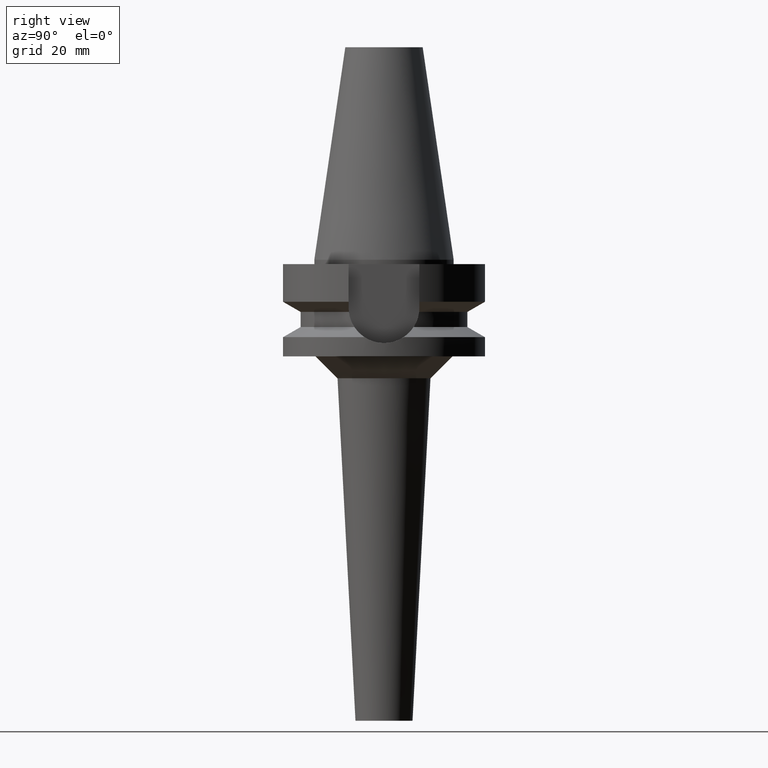
[diagram: clean part render]
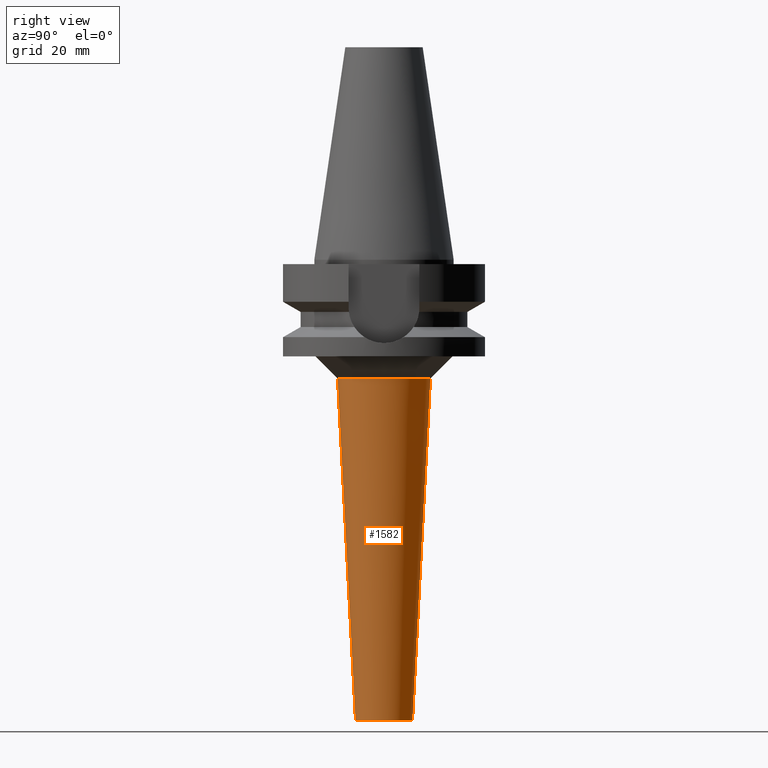
[diagram: same view with one face highlighted and labeled with its STEP entity id]
A machine part, right view. The second image highlights one B-rep face of the part: STEP entity #1582.
In plain terms, the highlighted conical surface has half-angle 3 deg.
Its self-contained STEP definition (entity closure, byte-faithful):
#669=DIRECTION('',(0.E0,-5.233595624296E-2,-9.986295347546E-1));
#670=VECTOR('',#669,7.810704298784E1);
#671=CARTESIAN_POINT('',(0.E0,1.058780678408E1,-2.7E1));
#672=LINE('',#671,#670);
#676=CARTESIAN_POINT('',(0.E0,0.E0,-2.7E1));
#677=DIRECTION('',(0.E0,0.E0,1.E0));
#678=DIRECTION('',(0.E0,-1.E0,0.E0));
#679=AXIS2_PLACEMENT_3D('',#676,#677,#678);
#684=DIRECTION('',(0.E0,5.233595624296E-2,-9.986295347546E-1));
#685=VECTOR('',#684,7.810704298784E1);
#686=CARTESIAN_POINT('',(0.E0,-1.058780678408E1,-2.7E1));
#687=LINE('',#686,#685);
#691=CARTESIAN_POINT('',(0.E0,0.E0,-1.05E2));
#692=DIRECTION('',(0.E0,0.E0,1.E0));
#693=DIRECTION('',(0.E0,-1.E0,0.E0));
#694=AXIS2_PLACEMENT_3D('',#691,#692,#693);
#1019=CARTESIAN_POINT('',(0.E0,-6.5E0,-1.05E2));
#1020=CARTESIAN_POINT('',(0.E0,6.5E0,-1.05E2));
#1021=VERTEX_POINT('',#1019);
#1022=VERTEX_POINT('',#1020);
#1023=CARTESIAN_POINT('',(0.E0,1.058780678408E1,-2.7E1));
#1024=VERTEX_POINT('',#1023);
#1025=CARTESIAN_POINT('',(0.E0,-1.058780678408E1,-2.7E1));
#1026=VERTEX_POINT('',#1025);
#1568=CARTESIAN_POINT('',(0.E0,0.E0,-6.6E1));
#1569=DIRECTION('',(0.E0,0.E0,1.E0));
#1570=DIRECTION('',(0.E0,1.E0,0.E0));
#1571=AXIS2_PLACEMENT_3D('',#1568,#1569,#1570);
#1572=CONICAL_SURFACE('',#1571,8.543903392039E0,3.E0);
#1574=ORIENTED_EDGE('',*,*,#1573,.T.);
#1576=ORIENTED_EDGE('',*,*,#1575,.F.);
#1578=ORIENTED_EDGE('',*,*,#1577,.F.);
#1579=ORIENTED_EDGE('',*,*,#1561,.T.);
#1580=EDGE_LOOP('',(#1574,#1576,#1578,#1579));
#1581=FACE_OUTER_BOUND('',#1580,.F.);
#680=CIRCLE('',#679,1.058780678408E1);
#695=CIRCLE('',#694,6.5E0);
#1561=EDGE_CURVE('',#1026,#1024,#680,.T.);
#1573=EDGE_CURVE('',#1024,#1022,#672,.T.);
#1575=EDGE_CURVE('',#1021,#1022,#695,.T.);
#1577=EDGE_CURVE('',#1026,#1021,#687,.T.);
#1582=ADVANCED_FACE('',(#1581),#1572,.T.);